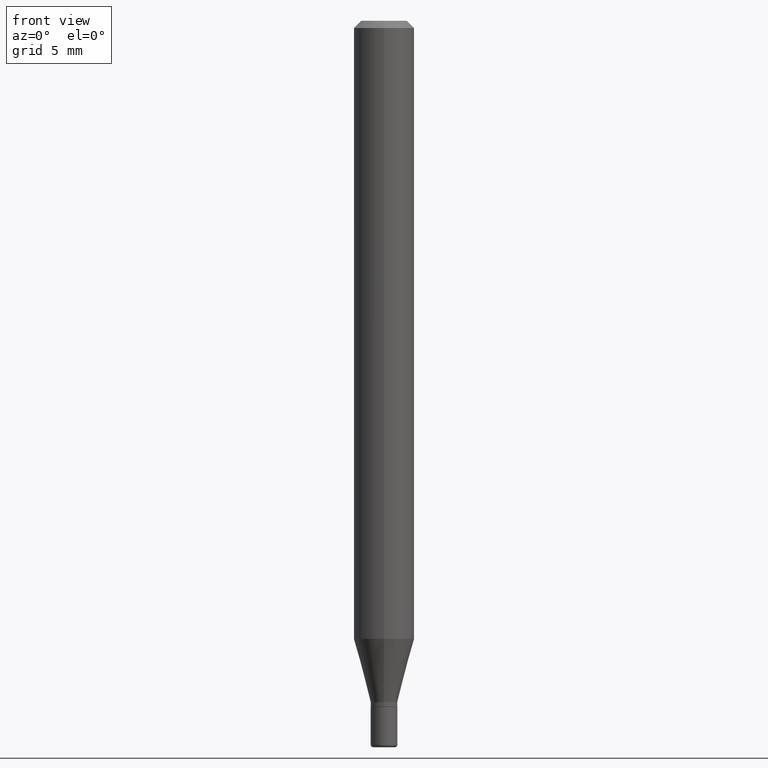
[diagram: clean part render]
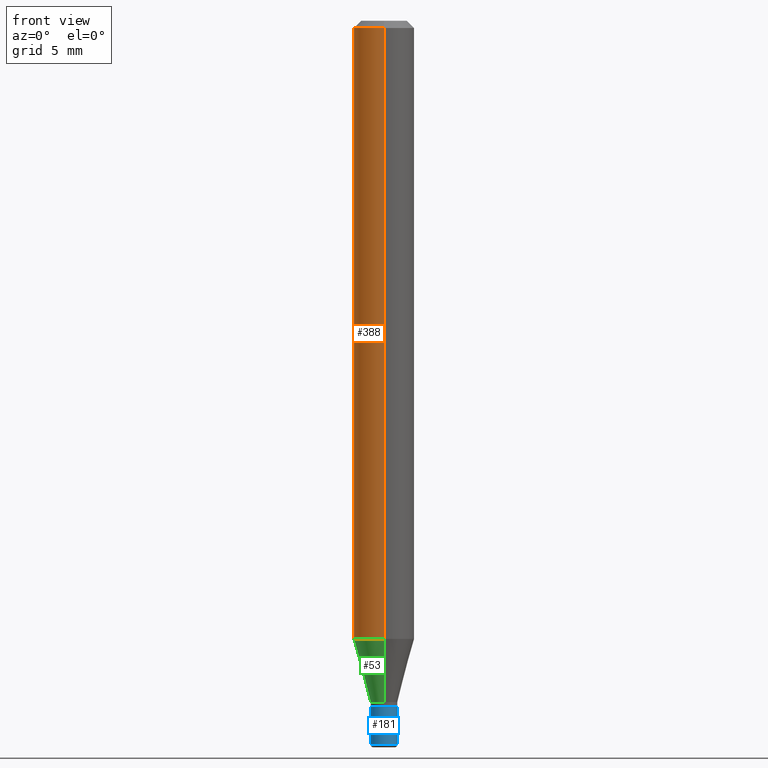
[diagram: same view with three faces highlighted in distinct colors, each labeled with its STEP entity id]
A machine part, front view with three faces highlighted in distinct colors.
Their STEP definitions:

[orange] entity #388 — the highlighted cylindrical surface (edge-blend (fillet) strip) has radius 1.5875 mm, axis along (-0, 0, 1).
#24 = VECTOR ( 'NONE', #337, 39.37007874015748143 ) ;
#36 = AXIS2_PLACEMENT_3D ( 'NONE', #273, #121, #359 ) ;
#37 = DIRECTION ( 'NONE',  ( -6.982962677686265922E-15, -1.000000000000000000, 3.491536060866079986E-15 ) ) ;
#42 = CARTESIAN_POINT ( 'NONE',  ( -4.364351673553605587E-16, -0.06250000000000449640, -1.276378221735089857 ) ) ;
#59 = AXIS2_PLACEMENT_3D ( 'NONE', #327, #328, #334 ) ;
#75 = CARTESIAN_POINT ( 'NONE',  ( 0.000000000000000000, 0.000000000000000000, 0.000000000000000000 ) ) ;
#76 = LINE ( 'NONE', #511, #24 ) ;
#121 = DIRECTION ( 'NONE',  ( -2.445430594000756604E-29, 3.491536060866079986E-15, 1.000000000000000000 ) ) ;
#133 = VERTEX_POINT ( 'NONE', #395 ) ;
#175 = CARTESIAN_POINT ( 'NONE',  ( 4.440892098500935790E-16, 0.06249999999999551747, -1.276378221735090301 ) ) ;
#178 = CIRCLE ( 'NONE', #36, 0.06250000000000000000 ) ;
#193 = CARTESIAN_POINT ( 'NONE',  ( 4.440892098500625669E-16, 0.06250000000000000000, -2.182210038041299992E-16 ) ) ;
#205 = EDGE_LOOP ( 'NONE', ( #318, #297, #316, #456 ) ) ;
#210 = VERTEX_POINT ( 'NONE', #42 ) ;
#228 = DIRECTION ( 'NONE',  ( -2.445430594000756604E-29, 3.491536060866079986E-15, 1.000000000000000000 ) ) ;
#253 = EDGE_CURVE ( 'NONE', #300, #210, #178, .T. ) ;
#259 = CIRCLE ( 'NONE', #59, 0.06250000000000000000 ) ;
#268 = AXIS2_PLACEMENT_3D ( 'NONE', #75, #228, #37 ) ;
#273 = CARTESIAN_POINT ( 'NONE',  ( 3.121294352947271475E-29, -4.456520588492188599E-15, -1.276378221735090079 ) ) ;
#291 = EDGE_CURVE ( 'NONE', #324, #133, #259, .T. ) ;
#297 = ORIENTED_EDGE ( 'NONE', *, *, #253, .T. ) ;
#300 = VERTEX_POINT ( 'NONE', #175 ) ;
#316 = ORIENTED_EDGE ( 'NONE', *, *, #455, .T. ) ;
#318 = ORIENTED_EDGE ( 'NONE', *, *, #393, .F. ) ;
#324 = VERTEX_POINT ( 'NONE', #348 ) ;
#327 = CARTESIAN_POINT ( 'NONE',  ( 3.668145891001062423E-31, -5.237304091299016762E-17, -0.01499999999999970281 ) ) ;
#328 = DIRECTION ( 'NONE',  ( -2.445430594000756604E-29, 3.491536060866079986E-15, 1.000000000000000000 ) ) ;
#334 = DIRECTION ( 'NONE',  ( -6.982962677686265922E-15, -1.000000000000000000, 3.483106191921935554E-15 ) ) ;
#337 = DIRECTION ( 'NONE',  ( -2.445430594000756604E-29, 3.491536060866079986E-15, 1.000000000000000000 ) ) ;
#348 = CARTESIAN_POINT ( 'NONE',  ( 4.440892098500940720E-16, 0.06249999999999995143, -0.01499999999999992138 ) ) ;
#359 = DIRECTION ( 'NONE',  ( -6.982962677686265922E-15, -1.000000000000000000, 4.370956789862821150E-15 ) ) ;
#388 = ADVANCED_FACE ( 'NONE', ( #428 ), #390, .T. ) ;
#390 = CYLINDRICAL_SURFACE ( 'NONE', #268, 0.06250000000000000000 ) ;
#393 = EDGE_CURVE ( 'NONE', #300, #324, #471, .T. ) ;
#395 = CARTESIAN_POINT ( 'NONE',  ( -4.364351673553912750E-16, -0.06250000000000005551, -0.01499999999999948597 ) ) ;
#428 = FACE_OUTER_BOUND ( 'NONE', #205, .T. ) ;
#455 = EDGE_CURVE ( 'NONE', #210, #133, #76, .T. ) ;
#456 = ORIENTED_EDGE ( 'NONE', *, *, #291, .F. ) ;
#469 = DIRECTION ( 'NONE',  ( -2.445430594000756604E-29, 3.491536060866079986E-15, 1.000000000000000000 ) ) ;
#471 = LINE ( 'NONE', #193, #513 ) ;
#511 = CARTESIAN_POINT ( 'NONE',  ( -4.364351673553916201E-16, -0.06250000000000000000, 2.182210038041299992E-16 ) ) ;
#513 = VECTOR ( 'NONE', #469, 39.37007874015748143 ) ;

[blue] entity #181 — the highlighted cylindrical surface (edge-blend (fillet) strip) has radius 0.6985 mm, axis along (-0, 0, 1).
#3 = VERTEX_POINT ( 'NONE', #237 ) ;
#19 = EDGE_CURVE ( 'NONE', #69, #341, #267, .T. ) ;
#33 = DIRECTION ( 'NONE',  ( -2.445468806185136597E-29, 3.491481338843145583E-15, 1.000000000000000000 ) ) ;
#47 = ORIENTED_EDGE ( 'NONE', *, *, #19, .F. ) ;
#69 = VERTEX_POINT ( 'NONE', #155 ) ;
#84 = AXIS2_PLACEMENT_3D ( 'NONE', #125, #362, #270 ) ;
#97 = VECTOR ( 'NONE', #504, 39.37007874015748143 ) ;
#100 = ORIENTED_EDGE ( 'NONE', *, *, #420, .F. ) ;
#106 = AXIS2_PLACEMENT_3D ( 'NONE', #363, #443, #478 ) ;
#109 = DIRECTION ( 'NONE',  ( -2.445468806185136877E-29, 3.491481338843145188E-15, 1.000000000000000000 ) ) ;
#111 = ORIENTED_EDGE ( 'NONE', *, *, #487, .T. ) ;
#119 = CARTESIAN_POINT ( 'NONE',  ( -0.02750000000000000014, -4.888197577021592222E-15, -1.417000000000000259 ) ) ;
#120 = CYLINDRICAL_SURFACE ( 'NONE', #84, 0.02750000000000009034 ) ;
#125 = CARTESIAN_POINT ( 'NONE',  ( 0.000000000000000000, 0.000000000000000000, 0.000000000000000000 ) ) ;
#150 = EDGE_CURVE ( 'NONE', #3, #295, #195, .T. ) ;
#155 = CARTESIAN_POINT ( 'NONE',  ( -0.02750000000000017708, -4.888197577021591433E-15, -1.494999999999999662 ) ) ;
#181 = ADVANCED_FACE ( 'NONE', ( #276 ), #120, .T. ) ;
#186 = CARTESIAN_POINT ( 'NONE',  ( 3.465229298364339647E-29, -4.947429057140738329E-15, -1.417000000000000259 ) ) ;
#190 = DIRECTION ( 'NONE',  ( 1.000000000000000000, -6.982962677686279332E-15, 0.000000000000000000 ) ) ;
#191 = AXIS2_PLACEMENT_3D ( 'NONE', #186, #33, #190 ) ;
#195 = LINE ( 'NONE', #265, #483 ) ;
#224 = CIRCLE ( 'NONE', #106, 0.02750000000000017708 ) ;
#227 = CARTESIAN_POINT ( 'NONE',  ( -0.02750000000000009034, 1.953992523340281931E-16, -1.352707149820103385E-30 ) ) ;
#237 = CARTESIAN_POINT ( 'NONE',  ( 0.02750000000000017708, -5.411796075206875633E-15, -1.494999999999999662 ) ) ;
#256 = ORIENTED_EDGE ( 'NONE', *, *, #150, .T. ) ;
#265 = CARTESIAN_POINT ( 'NONE',  ( 0.02750000000000009034, -1.920314736363729607E-16, 1.340948613343886617E-30 ) ) ;
#267 = LINE ( 'NONE', #227, #97 ) ;
#270 = DIRECTION ( 'NONE',  ( 1.000000000000000000, -6.982962677686266711E-15, 4.876176775795935232E-29 ) ) ;
#276 = FACE_OUTER_BOUND ( 'NONE', #452, .T. ) ;
#295 = VERTEX_POINT ( 'NONE', #499 ) ;
#341 = VERTEX_POINT ( 'NONE', #119 ) ;
#362 = DIRECTION ( 'NONE',  ( -2.445468806185136597E-29, 3.491481338843145583E-15, 1.000000000000000000 ) ) ;
#363 = CARTESIAN_POINT ( 'NONE',  ( 3.655975865246778562E-29, -5.219764601570502352E-15, -1.494999999999999662 ) ) ;
#415 = CIRCLE ( 'NONE', #191, 0.02750000000000000014 ) ;
#420 = EDGE_CURVE ( 'NONE', #341, #295, #415, .T. ) ;
#443 = DIRECTION ( 'NONE',  ( -2.445468806185136597E-29, 3.491481338843145583E-15, 1.000000000000000000 ) ) ;
#452 = EDGE_LOOP ( 'NONE', ( #47, #111, #256, #100 ) ) ;
#478 = DIRECTION ( 'NONE',  ( 1.000000000000000000, -6.982962677686270655E-15, 0.000000000000000000 ) ) ;
#483 = VECTOR ( 'NONE', #109, 39.37007874015748143 ) ;
#487 = EDGE_CURVE ( 'NONE', #69, #3, #224, .T. ) ;
#499 = CARTESIAN_POINT ( 'NONE',  ( 0.02750000000000000014, -5.139460530777110821E-15, -1.417000000000000259 ) ) ;
#504 = DIRECTION ( 'NONE',  ( -2.445468806185136877E-29, 3.491481338843145188E-15, 1.000000000000000000 ) ) ;

[green] entity #53 — the highlighted conical surface has half-angle 15 deg.
#9 = EDGE_LOOP ( 'NONE', ( #145, #168, #55, #333 ) ) ;
#14 = EDGE_CURVE ( 'NONE', #460, #210, #39, .T. ) ;
#26 = DIRECTION ( 'NONE',  ( -2.445430594000756604E-29, 3.491536060866079986E-15, 1.000000000000000000 ) ) ;
#36 = AXIS2_PLACEMENT_3D ( 'NONE', #273, #121, #359 ) ;
#39 = LINE ( 'NONE', #384, #171 ) ;
#40 = CARTESIAN_POINT ( 'NONE',  ( 3.197442310920783026E-16, 0.02749999999999518802, -1.407000000000000250 ) ) ;
#42 = CARTESIAN_POINT ( 'NONE',  ( -4.364351673553605587E-16, -0.06250000000000449640, -1.276378221735089857 ) ) ;
#53 = ADVANCED_FACE ( 'NONE', ( #338 ), #366, .T. ) ;
#55 = ORIENTED_EDGE ( 'NONE', *, *, #14, .T. ) ;
#60 = DIRECTION ( 'NONE',  ( 1.839019923739596371E-15, 0.2588190451025244032, 0.9659258262890673130 ) ) ;
#115 = VECTOR ( 'NONE', #60, 39.37007874015748143 ) ;
#121 = DIRECTION ( 'NONE',  ( -2.445430594000756604E-29, 3.491536060866079986E-15, 1.000000000000000000 ) ) ;
#145 = ORIENTED_EDGE ( 'NONE', *, *, #263, .F. ) ;
#168 = ORIENTED_EDGE ( 'NONE', *, *, #458, .T. ) ;
#171 = VECTOR ( 'NONE', #194, 39.37007874015748854 ) ;
#175 = CARTESIAN_POINT ( 'NONE',  ( 4.440892098500935790E-16, 0.06249999999999551747, -1.276378221735090301 ) ) ;
#178 = CIRCLE ( 'NONE', #36, 0.06250000000000000000 ) ;
#184 = DIRECTION ( 'NONE',  ( -6.982962677686265922E-15, -1.000000000000000000, 0.000000000000000000 ) ) ;
#189 = AXIS2_PLACEMENT_3D ( 'NONE', #378, #26, #184 ) ;
#194 = DIRECTION ( 'NONE',  ( -1.807323732225326195E-15, -0.2588190451025176309, 0.9659258262890690894 ) ) ;
#199 = AXIS2_PLACEMENT_3D ( 'NONE', #275, #439, #203 ) ;
#203 = DIRECTION ( 'NONE',  ( -6.982962677686265922E-15, -1.000000000000000000, 0.000000000000000000 ) ) ;
#204 = LINE ( 'NONE', #277, #115 ) ;
#209 = CIRCLE ( 'NONE', #199, 0.02750000000000010075 ) ;
#210 = VERTEX_POINT ( 'NONE', #42 ) ;
#253 = EDGE_CURVE ( 'NONE', #300, #210, #178, .T. ) ;
#263 = EDGE_CURVE ( 'NONE', #412, #300, #204, .T. ) ;
#273 = CARTESIAN_POINT ( 'NONE',  ( 3.121294352947271475E-29, -4.456520588492188599E-15, -1.276378221735090079 ) ) ;
#275 = CARTESIAN_POINT ( 'NONE',  ( 3.440720845759065849E-29, -4.912591237638575836E-15, -1.407000000000000250 ) ) ;
#277 = CARTESIAN_POINT ( 'NONE',  ( 1.953992523340626318E-16, 0.02749999999999518802, -1.407000000000000250 ) ) ;
#300 = VERTEX_POINT ( 'NONE', #175 ) ;
#333 = ORIENTED_EDGE ( 'NONE', *, *, #253, .F. ) ;
#338 = FACE_OUTER_BOUND ( 'NONE', #9, .T. ) ;
#359 = DIRECTION ( 'NONE',  ( -6.982962677686265922E-15, -1.000000000000000000, 4.370956789862821150E-15 ) ) ;
#366 = CONICAL_SURFACE ( 'NONE', #189, 0.02750000000000010075, 0.2617993877991496854 ) ;
#378 = CARTESIAN_POINT ( 'NONE',  ( 3.440720845759065849E-29, -4.912591237638575836E-15, -1.407000000000000250 ) ) ;
#384 = CARTESIAN_POINT ( 'NONE',  ( -1.920314736363385959E-16, -0.02750000000000501349, -1.407000000000000250 ) ) ;
#412 = VERTEX_POINT ( 'NONE', #40 ) ;
#439 = DIRECTION ( 'NONE',  ( -2.445430594000756604E-29, 3.491536060866079986E-15, 1.000000000000000000 ) ) ;
#458 = EDGE_CURVE ( 'NONE', #412, #460, #209, .T. ) ;
#460 = VERTEX_POINT ( 'NONE', #486 ) ;
#486 = CARTESIAN_POINT ( 'NONE',  ( -1.920314736363385959E-16, -0.02750000000000501349, -1.407000000000000250 ) ) ;